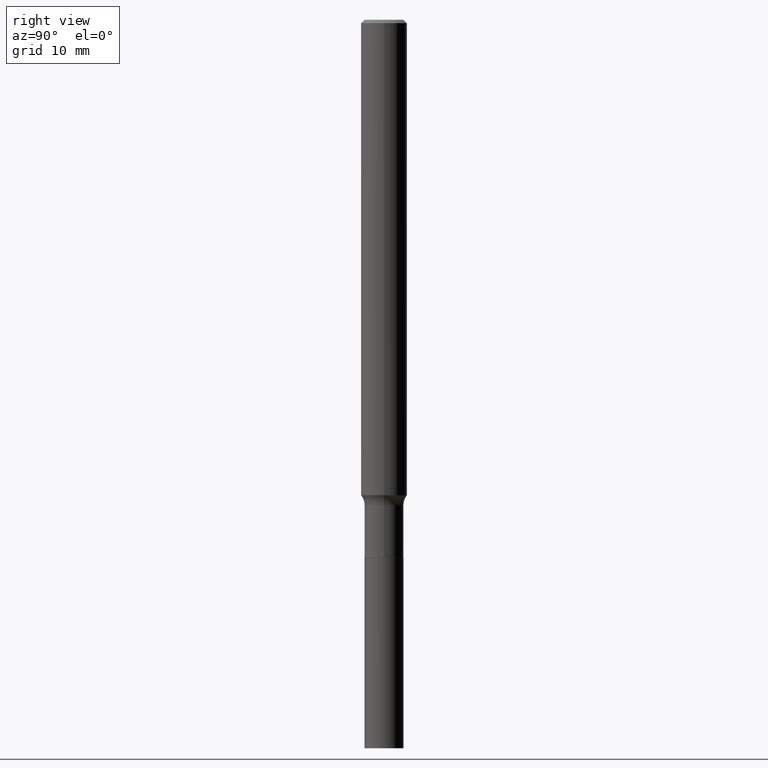
[diagram: clean part render]
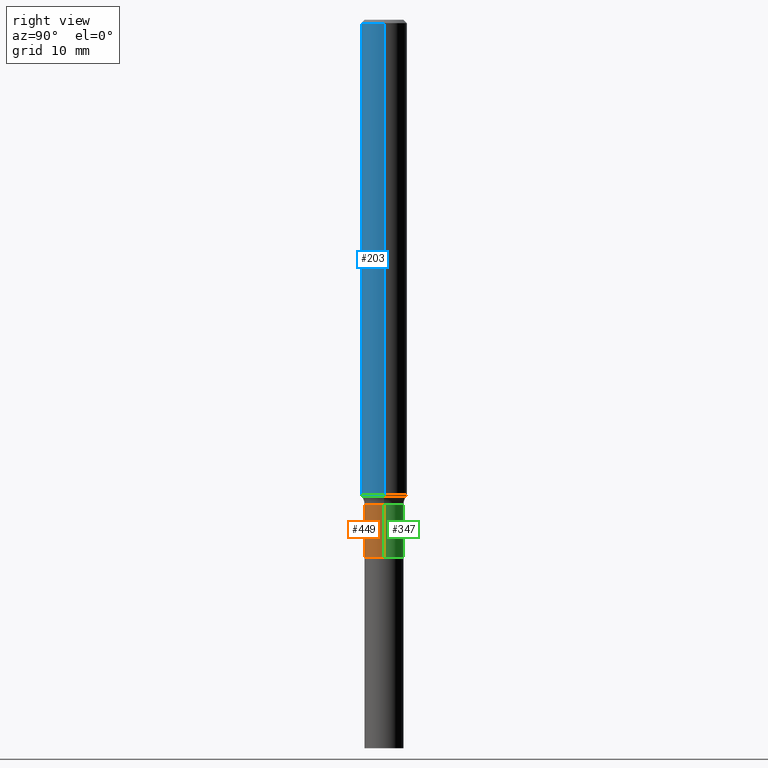
[diagram: same view with three faces highlighted in distinct colors, each labeled with its STEP entity id]
A machine part, right view with three faces highlighted in distinct colors.
Their STEP definitions:

[orange] entity #449 — the highlighted cylindrical surface (edge-blend (fillet) strip) has radius 2.5502 mm, axis along (-0, 0, 1).
#3 = CARTESIAN_POINT ( 'NONE',  ( 0.000000000000000000, 0.000000000000000000, 0.000000000000000000 ) ) ;
#4 = ORIENTED_EDGE ( 'NONE', *, *, #209, .F. ) ;
#13 = CARTESIAN_POINT ( 'NONE',  ( -0.1004000000000000031, -8.458387422303918210E-15, -2.762700000000000156 ) ) ;
#23 = DIRECTION ( 'NONE',  ( 1.000000000000000000, -6.982962677686274599E-15, 0.000000000000000000 ) ) ;
#29 = EDGE_CURVE ( 'NONE', #70, #219, #37, .T. ) ;
#37 = LINE ( 'NONE', #400, #458 ) ;
#41 = AXIS2_PLACEMENT_3D ( 'NONE', #3, #431, #397 ) ;
#47 = CARTESIAN_POINT ( 'NONE',  ( -0.1003999999999999893, 7.133849067031405103E-16, -4.938610830615924293E-30 ) ) ;
#48 = AXIS2_PLACEMENT_3D ( 'NONE', #80, #267, #23 ) ;
#51 = CARTESIAN_POINT ( 'NONE',  ( 6.756096670847677642E-29, -9.645915494821958416E-15, -2.762700000000000156 ) ) ;
#58 = CIRCLE ( 'NONE', #48, 0.1003999999999999754 ) ;
#70 = VERTEX_POINT ( 'NONE', #328 ) ;
#80 = CARTESIAN_POINT ( 'NONE',  ( 6.091907343087794334E-29, -8.697629163192159813E-15, -2.491100000000000314 ) ) ;
#91 = EDGE_LOOP ( 'NONE', ( #172, #303, #289, #4 ) ) ;
#113 = VERTEX_POINT ( 'NONE', #194 ) ;
#127 = LINE ( 'NONE', #47, #343 ) ;
#143 = DIRECTION ( 'NONE',  ( -2.445468806185136877E-29, 3.491481338843145188E-15, 1.000000000000000000 ) ) ;
#148 = CYLINDRICAL_SURFACE ( 'NONE', #41, 0.1003999999999999893 ) ;
#165 = DIRECTION ( 'NONE',  ( -2.445468806185136877E-29, 3.491481338843145188E-15, 1.000000000000000000 ) ) ;
#172 = ORIENTED_EDGE ( 'NONE', *, *, #215, .F. ) ;
#194 = CARTESIAN_POINT ( 'NONE',  ( -0.1003999999999999754, -8.458387422303918210E-15, -2.491100000000000314 ) ) ;
#209 = EDGE_CURVE ( 'NONE', #113, #219, #58, .T. ) ;
#215 = EDGE_CURVE ( 'NONE', #217, #113, #127, .T. ) ;
#217 = VERTEX_POINT ( 'NONE', #13 ) ;
#219 = VERTEX_POINT ( 'NONE', #313 ) ;
#227 = DIRECTION ( 'NONE',  ( 1.000000000000000000, -6.982962677686262766E-15, 0.000000000000000000 ) ) ;
#231 = EDGE_CURVE ( 'NONE', #217, #70, #402, .T. ) ;
#264 = AXIS2_PLACEMENT_3D ( 'NONE', #51, #266, #227 ) ;
#266 = DIRECTION ( 'NONE',  ( -2.445468806185136597E-29, 3.491481338843145583E-15, 1.000000000000000000 ) ) ;
#267 = DIRECTION ( 'NONE',  ( -2.445468806185136597E-29, 3.491481338843145583E-15, 1.000000000000000000 ) ) ;
#289 = ORIENTED_EDGE ( 'NONE', *, *, #29, .T. ) ;
#303 = ORIENTED_EDGE ( 'NONE', *, *, #231, .T. ) ;
#313 = CARTESIAN_POINT ( 'NONE',  ( 0.1003999999999999754, -9.398718616031862467E-15, -2.491100000000000314 ) ) ;
#328 = CARTESIAN_POINT ( 'NONE',  ( 0.1004000000000000031, -1.034700494766165949E-14, -2.762700000000000156 ) ) ;
#343 = VECTOR ( 'NONE', #165, 39.37007874015748143 ) ;
#397 = DIRECTION ( 'NONE',  ( 1.000000000000000000, -6.982962677686266711E-15, 4.876176775795935232E-29 ) ) ;
#400 = CARTESIAN_POINT ( 'NONE',  ( 0.1003999999999999893, -7.010894528397010768E-16, 4.895681482899118454E-30 ) ) ;
#402 = CIRCLE ( 'NONE', #264, 0.1004000000000000031 ) ;
#431 = DIRECTION ( 'NONE',  ( -2.445468806185136597E-29, 3.491481338843145583E-15, 1.000000000000000000 ) ) ;
#449 = ADVANCED_FACE ( 'NONE', ( #468 ), #148, .T. ) ;
#458 = VECTOR ( 'NONE', #143, 39.37007874015748143 ) ;
#468 = FACE_OUTER_BOUND ( 'NONE', #91, .T. ) ;

[blue] entity #203 — the highlighted cylindrical surface (edge-blend (fillet) strip) has radius 2.9997 mm, axis along (-0, 0, 1).
#39 = EDGE_CURVE ( 'NONE', #274, #409, #285, .T. ) ;
#43 = CARTESIAN_POINT ( 'NONE',  ( 0.1181000000000000105, -8.865394841523548556E-16, -0.01771500000000011607 ) ) ;
#53 = FACE_OUTER_BOUND ( 'NONE', #94, .T. ) ;
#66 = AXIS2_PLACEMENT_3D ( 'NONE', #164, #312, #376 ) ;
#78 = DIRECTION ( 'NONE',  ( -2.445468806185136597E-29, 3.491481338843145583E-15, 1.000000000000000000 ) ) ;
#90 = EDGE_CURVE ( 'NONE', #242, #365, #315, .T. ) ;
#94 = EDGE_LOOP ( 'NONE', ( #149, #187, #462, #378 ) ) ;
#96 = CARTESIAN_POINT ( 'NONE',  ( -0.1181000000000001632, 8.391509709326794790E-16, -5.809262341591051491E-30 ) ) ;
#111 = DIRECTION ( 'NONE',  ( -2.445468806185136877E-29, 3.491481338843145188E-15, 1.000000000000000000 ) ) ;
#115 = DIRECTION ( 'NONE',  ( -2.445468806185136597E-29, 3.491481338843145583E-15, 1.000000000000000000 ) ) ;
#121 = CARTESIAN_POINT ( 'NONE',  ( -0.1181000000000003020, -7.683252086848746788E-15, -2.440913248760255172 ) ) ;
#149 = ORIENTED_EDGE ( 'NONE', *, *, #329, .F. ) ;
#164 = CARTESIAN_POINT ( 'NONE',  ( 0.000000000000000000, 0.000000000000000000, 0.000000000000000000 ) ) ;
#173 = AXIS2_PLACEMENT_3D ( 'NONE', #404, #78, #367 ) ;
#181 = LINE ( 'NONE', #324, #286 ) ;
#187 = ORIENTED_EDGE ( 'NONE', *, *, #90, .T. ) ;
#201 = CYLINDRICAL_SURFACE ( 'NONE', #66, 0.1181000000000001632 ) ;
#203 = ADVANCED_FACE ( 'NONE', ( #53 ), #201, .T. ) ;
#213 = VECTOR ( 'NONE', #279, 39.37007874015748143 ) ;
#242 = VERTEX_POINT ( 'NONE', #121 ) ;
#274 = VERTEX_POINT ( 'NONE', #388 ) ;
#279 = DIRECTION ( 'NONE',  ( -2.445468806185136877E-29, 3.491481338843145188E-15, 1.000000000000000000 ) ) ;
#284 = CARTESIAN_POINT ( 'NONE',  ( 0.1181000000000003020, -9.347090950016178769E-15, -2.440913248760255172 ) ) ;
#285 = CIRCLE ( 'NONE', #342, 0.1181000000000000105 ) ;
#286 = VECTOR ( 'NONE', #111, 39.37007874015748143 ) ;
#294 = DIRECTION ( 'NONE',  ( 1.000000000000000000, -6.982962677686267499E-15, 0.000000000000000000 ) ) ;
#312 = DIRECTION ( 'NONE',  ( -2.445468806185136597E-29, 3.491481338843145583E-15, 1.000000000000000000 ) ) ;
#315 = CIRCLE ( 'NONE', #173, 0.1181000000000003020 ) ;
#324 = CARTESIAN_POINT ( 'NONE',  ( 0.1181000000000001632, -8.246878922347493473E-16, 5.758764772215008848E-30 ) ) ;
#329 = EDGE_CURVE ( 'NONE', #242, #274, #424, .T. ) ;
#342 = AXIS2_PLACEMENT_3D ( 'NONE', #358, #115, #294 ) ;
#358 = CARTESIAN_POINT ( 'NONE',  ( 4.332147990156997620E-31, -6.185159191760672860E-17, -0.01771500000000011607 ) ) ;
#365 = VERTEX_POINT ( 'NONE', #284 ) ;
#367 = DIRECTION ( 'NONE',  ( 1.000000000000000000, -6.982962677686271444E-15, 0.000000000000000000 ) ) ;
#376 = DIRECTION ( 'NONE',  ( 1.000000000000000000, -6.982962677686267499E-15, 4.876176775795936353E-29 ) ) ;
#378 = ORIENTED_EDGE ( 'NONE', *, *, #39, .F. ) ;
#388 = CARTESIAN_POINT ( 'NONE',  ( -0.1181000000000000105, -3.452976353916835028E-15, -0.01771500000000011607 ) ) ;
#404 = CARTESIAN_POINT ( 'NONE',  ( 5.969177208447224708E-29, -8.522403057781427351E-15, -2.440913248760255172 ) ) ;
#409 = VERTEX_POINT ( 'NONE', #43 ) ;
#424 = LINE ( 'NONE', #96, #213 ) ;
#433 = EDGE_CURVE ( 'NONE', #365, #409, #181, .T. ) ;
#462 = ORIENTED_EDGE ( 'NONE', *, *, #433, .T. ) ;

[green] entity #347 — the highlighted cylindrical surface (edge-blend (fillet) strip) has radius 2.5502 mm, axis along (-0, 0, 1).
#2 = EDGE_CURVE ( 'NONE', #70, #217, #190, .T. ) ;
#13 = CARTESIAN_POINT ( 'NONE',  ( -0.1004000000000000031, -8.458387422303918210E-15, -2.762700000000000156 ) ) ;
#29 = EDGE_CURVE ( 'NONE', #70, #219, #37, .T. ) ;
#37 = LINE ( 'NONE', #400, #458 ) ;
#47 = CARTESIAN_POINT ( 'NONE',  ( -0.1003999999999999893, 7.133849067031405103E-16, -4.938610830615924293E-30 ) ) ;
#62 = CARTESIAN_POINT ( 'NONE',  ( 0.000000000000000000, 0.000000000000000000, 0.000000000000000000 ) ) ;
#65 = DIRECTION ( 'NONE',  ( -2.445468806185136597E-29, 3.491481338843145583E-15, 1.000000000000000000 ) ) ;
#70 = VERTEX_POINT ( 'NONE', #328 ) ;
#74 = ORIENTED_EDGE ( 'NONE', *, *, #29, .F. ) ;
#101 = CIRCLE ( 'NONE', #377, 0.1003999999999999754 ) ;
#113 = VERTEX_POINT ( 'NONE', #194 ) ;
#127 = LINE ( 'NONE', #47, #343 ) ;
#143 = DIRECTION ( 'NONE',  ( -2.445468806185136877E-29, 3.491481338843145188E-15, 1.000000000000000000 ) ) ;
#165 = DIRECTION ( 'NONE',  ( -2.445468806185136877E-29, 3.491481338843145188E-15, 1.000000000000000000 ) ) ;
#189 = AXIS2_PLACEMENT_3D ( 'NONE', #255, #395, #436 ) ;
#190 = CIRCLE ( 'NONE', #189, 0.1004000000000000031 ) ;
#194 = CARTESIAN_POINT ( 'NONE',  ( -0.1003999999999999754, -8.458387422303918210E-15, -2.491100000000000314 ) ) ;
#202 = EDGE_LOOP ( 'NONE', ( #330, #401, #296, #74 ) ) ;
#204 = CARTESIAN_POINT ( 'NONE',  ( 6.091907343087794334E-29, -8.697629163192159813E-15, -2.491100000000000314 ) ) ;
#215 = EDGE_CURVE ( 'NONE', #217, #113, #127, .T. ) ;
#217 = VERTEX_POINT ( 'NONE', #13 ) ;
#219 = VERTEX_POINT ( 'NONE', #313 ) ;
#240 = DIRECTION ( 'NONE',  ( 1.000000000000000000, -6.982962677686274599E-15, 0.000000000000000000 ) ) ;
#250 = CYLINDRICAL_SURFACE ( 'NONE', #327, 0.1003999999999999893 ) ;
#255 = CARTESIAN_POINT ( 'NONE',  ( 6.756096670847677642E-29, -9.645915494821958416E-15, -2.762700000000000156 ) ) ;
#277 = EDGE_CURVE ( 'NONE', #219, #113, #101, .T. ) ;
#296 = ORIENTED_EDGE ( 'NONE', *, *, #277, .F. ) ;
#313 = CARTESIAN_POINT ( 'NONE',  ( 0.1003999999999999754, -9.398718616031862467E-15, -2.491100000000000314 ) ) ;
#323 = DIRECTION ( 'NONE',  ( -2.445468806185136597E-29, 3.491481338843145583E-15, 1.000000000000000000 ) ) ;
#327 = AXIS2_PLACEMENT_3D ( 'NONE', #62, #323, #381 ) ;
#328 = CARTESIAN_POINT ( 'NONE',  ( 0.1004000000000000031, -1.034700494766165949E-14, -2.762700000000000156 ) ) ;
#330 = ORIENTED_EDGE ( 'NONE', *, *, #2, .T. ) ;
#343 = VECTOR ( 'NONE', #165, 39.37007874015748143 ) ;
#347 = ADVANCED_FACE ( 'NONE', ( #464 ), #250, .T. ) ;
#377 = AXIS2_PLACEMENT_3D ( 'NONE', #204, #65, #240 ) ;
#381 = DIRECTION ( 'NONE',  ( 1.000000000000000000, -6.982962677686266711E-15, 4.876176775795935232E-29 ) ) ;
#395 = DIRECTION ( 'NONE',  ( -2.445468806185136597E-29, 3.491481338843145583E-15, 1.000000000000000000 ) ) ;
#400 = CARTESIAN_POINT ( 'NONE',  ( 0.1003999999999999893, -7.010894528397010768E-16, 4.895681482899118454E-30 ) ) ;
#401 = ORIENTED_EDGE ( 'NONE', *, *, #215, .T. ) ;
#436 = DIRECTION ( 'NONE',  ( 1.000000000000000000, -6.982962677686262766E-15, 0.000000000000000000 ) ) ;
#458 = VECTOR ( 'NONE', #143, 39.37007874015748143 ) ;
#464 = FACE_OUTER_BOUND ( 'NONE', #202, .T. ) ;